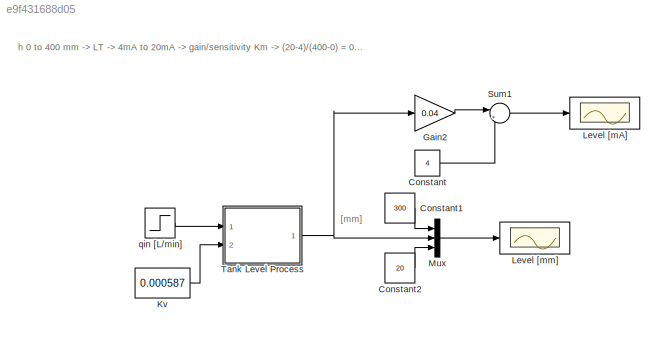
MODEL slx_e9f431688d05
KIND model
CONFIG AbsTol = auto
CONFIG EnableMultiTasking = off
CONFIG FixedStep = 0.01
CONFIG MaxStep = auto
CONFIG MinStep = auto
CONFIG RelTol = 1e-3
CONFIG SampleTimeConstraint = Unconstrained
CONFIG SolverName = ode4
CONFIG StartTime = 0.0
CONFIG StopTime = 500
BLOCK [Constant] Constant
  Value = 4
BLOCK [Constant] Constant1
  Value = 300
BLOCK [Constant] Constant2
  Value = 20
BLOCK [Gain] Gain2
  Gain = 0.04
BLOCK [Constant] Kv
  Value = 0.000587
BLOCK [Scope] Level [mA]
  Floating = off
  NumInputPorts = 1
  Ports = [1]
  ScopeSpecificationString = Simulink.scopes.TimeScopeBlockCfg('CurrentConfiguration', extmgr.ConfigurationSet(extmgr.Configuration('Core','General UI',true),extmgr.Configuration('Core','Source UI',true),extmgr.Configuration('Sources','WiredSimulink',true,'DataLoggingVariableName','ScopeData1'),extmgr.Configuration('Visuals','Time Domain',true,'SerializedDisplays',{struct('MinYLimReal','0','MaxYLimReal','20','YLabelReal','','...<+1400ch>
BLOCK [Scope] Level [mm]
  Floating = off
  NumInputPorts = 1
  Ports = [1]
  ScopeSpecificationString = Simulink.scopes.TimeScopeBlockCfg('CurrentConfiguration', extmgr.ConfigurationSet(extmgr.Configuration('Core','General UI',true),extmgr.Configuration('Core','Source UI',true),extmgr.Configuration('Sources','WiredSimulink',true),extmgr.Configuration('Visuals','Time Domain',true,'SerializedDisplays',{struct('MinYLimReal','0','MaxYLimReal','500','YLabelReal','','MinYLimMag','0.00000','MaxYLimMag','20...<+1392ch>
BLOCK [Mux] Mux
  DisplayOption = bar
  Inputs = 3
  Ports = [3, 1]
BLOCK [Sum] Sum1
  Inputs = |++
  Ports = [2, 1]
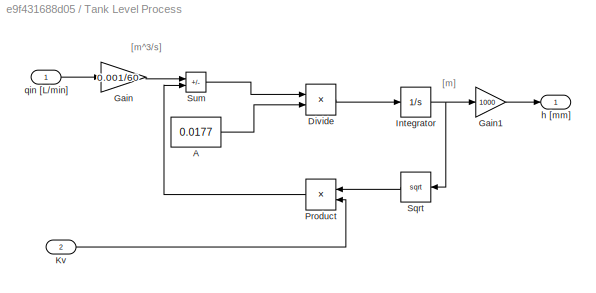
BLOCK [SubSystem] Tank Level Process
  Ports = [2, 1]
  RequestExecContextInheritance = off
BLOCK [Constant] Tank Level Process/A
  Value = 0.0177
BLOCK [Product] Tank Level Process/Divide
  Inputs = */
  Ports = [2, 1]
BLOCK [Gain] Tank Level Process/Gain
  Gain = 0.001/60
BLOCK [Gain] Tank Level Process/Gain1
  Gain = 1000
BLOCK [Integrator] Tank Level Process/Integrator
  Ports = [1, 1]
BLOCK [Inport] Tank Level Process/Kv
  Port = 2
BLOCK [Product] Tank Level Process/Product
  Ports = [2, 1]
BLOCK [Sqrt] Tank Level Process/Sqrt
BLOCK [Sum] Tank Level Process/Sum
  IconShape = rectangular
  Inputs = +-
  Ports = [2, 1]
BLOCK [Outport] Tank Level Process/h [mm]
BLOCK [Inport] Tank Level Process/qin [L//min]
BLOCK [Step] qin [L//min]
  After = 15
  SampleTime = 0
  Time = 0
ANNOTATION (root): [mm]
ANNOTATION (root): h 0 to 400 mm -> LT -> 4mA to 20mA -> gain/sensitivity Km -> (20-4)/(400-0) = 0.04 mA/mm
ANNOTATION Tank Level Process: [m]
ANNOTATION Tank Level Process: [m^3/s]
LINE Constant1:1 -> Mux:1
LINE Constant2:1 -> Mux:3
LINE Constant:1 -> Sum1:2
LINE Gain2:1 -> Sum1:1
LINE Kv:1 -> Tank Level Process:2
LINE Mux:1 -> Level [mm]:1
LINE Sum1:1 -> Level [mA]:1
LINE Tank Level Process/A:1 -> Tank Level Process/Divide:2
LINE Tank Level Process/Divide:1 -> Tank Level Process/Integrator:1
LINE Tank Level Process/Gain1:1 -> Tank Level Process/h [mm]:1
LINE Tank Level Process/Gain:1 -> Tank Level Process/Sum:1
NET Tank Level Process/Integrator:1 -> Tank Level Process/Gain1:1, Tank Level Process/Sqrt:1
LINE Tank Level Process/Kv:1 -> Tank Level Process/Product:2
LINE Tank Level Process/Product:1 -> Tank Level Process/Sum:2
LINE Tank Level Process/Sqrt:1 -> Tank Level Process/Product:1
LINE Tank Level Process/Sum:1 -> Tank Level Process/Divide:1
LINE Tank Level Process/qin [L//min]:1 -> Tank Level Process/Gain:1
NET Tank Level Process:1 -> Gain2:1, Mux:2
LINE qin [L//min]:1 -> Tank Level Process:1
note: NET lines group one-source signal fan-out (src -> all destinations, sorted); 1:1 wires keep LINE
